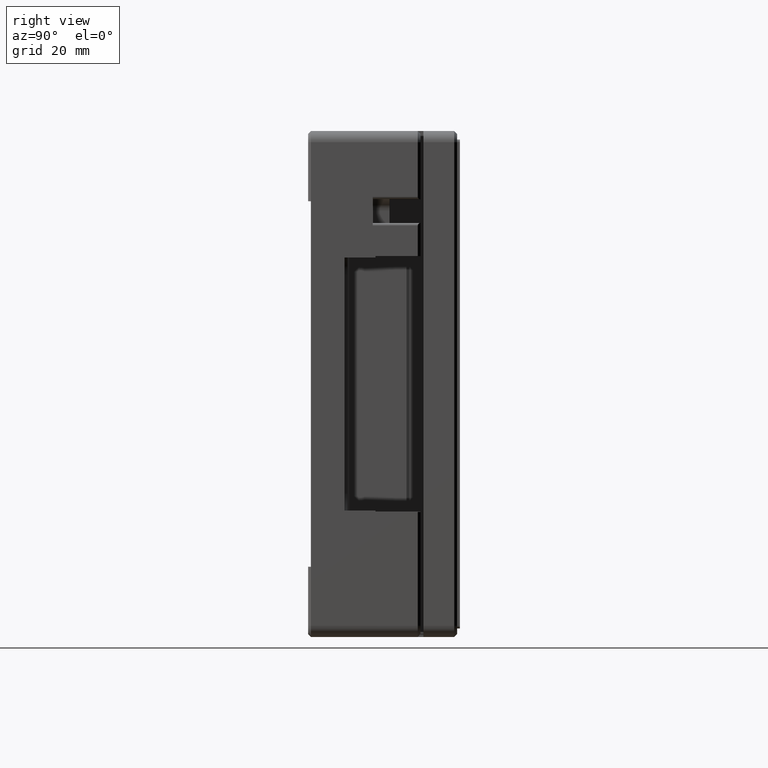
[diagram: clean part render]
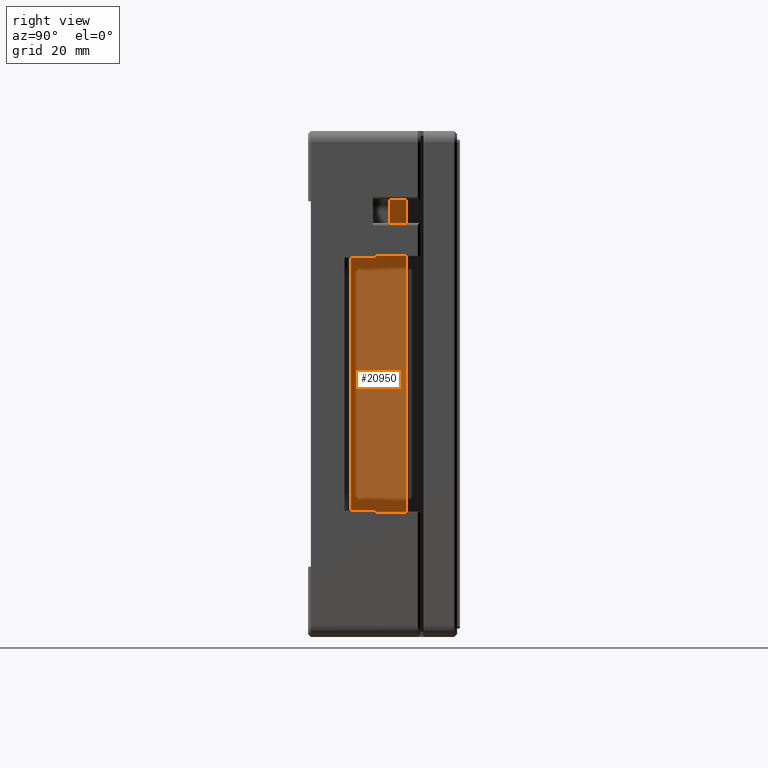
[diagram: same view with one face highlighted and labeled with its STEP entity id]
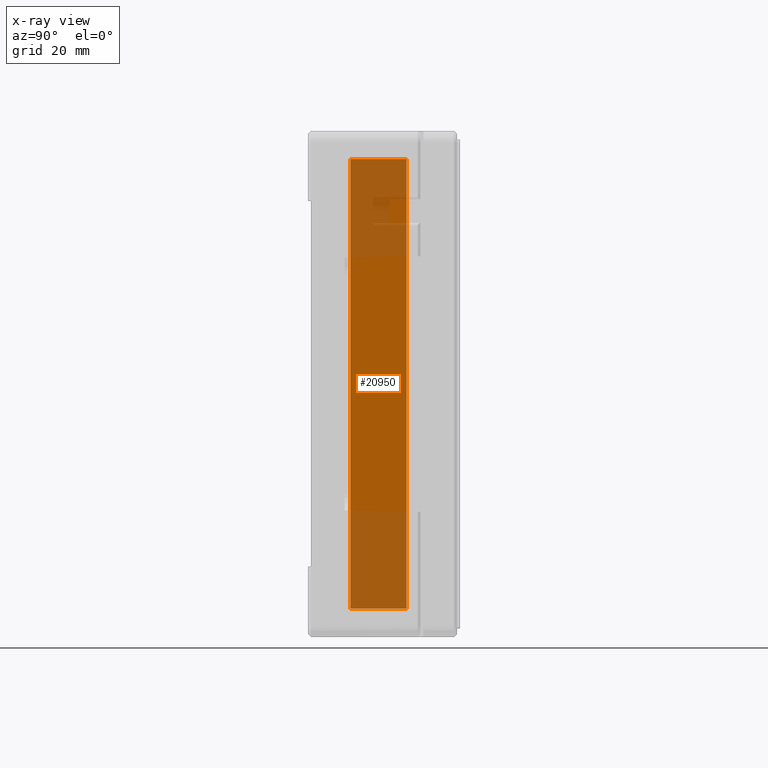
[diagram: x-ray of the same camera — body ghosted, the highlighted face saturated]
A machine part, right view. The second image highlights one B-rep face of the part: STEP entity #20950.
The next image is the same camera in x-ray: the body ghosted, the highlighted face saturated — about 42% of this face is hidden behind the body in this view.
In plain terms, the highlighted planar face has unit normal (1, 0, 0).
Its self-contained STEP definition (entity closure, byte-faithful):
#1202 = CARTESIAN_POINT ( 'NONE',  ( 7.050000000000000700, -12.50000000000000000, -39.99999999999995700 ) ) ;
#1499 = AXIS2_PLACEMENT_3D ( 'NONE', #1202, #35318, #16725 ) ;
#5408 = CARTESIAN_POINT ( 'NONE',  ( 7.050000000000000700, -7.500000000000000000, -39.99999999999995700 ) ) ;
#5901 = ORIENTED_EDGE ( 'NONE', *, *, #17691, .F. ) ;
#6386 = VERTEX_POINT ( 'NONE', #38178 ) ;
#7092 = VERTEX_POINT ( 'NONE', #23858 ) ;
#7365 = EDGE_CURVE ( 'NONE', #6386, #9621, #28474, .T. ) ;
#7394 = PLANE ( 'NONE',  #1499 ) ;
#9052 = CARTESIAN_POINT ( 'NONE',  ( 7.050000000000000700, -2.499999999999999600, -39.99999999999995700 ) ) ;
#9621 = VERTEX_POINT ( 'NONE', #9052 ) ;
#9778 = VECTOR ( 'NONE', #10739, 1000.000000000000000 ) ;
#10739 = DIRECTION ( 'NONE',  ( -0.0000000000000000000, 1.000000000000000000, 0.0000000000000000000 ) ) ;
#10743 = LINE ( 'NONE', #13693, #9778 ) ;
#12109 = CARTESIAN_POINT ( 'NONE',  ( 7.050000000000000700, -12.50000000000000000, -39.99999999999995700 ) ) ;
#12499 = ORIENTED_EDGE ( 'NONE', *, *, #7365, .F. ) ;
#12841 = VECTOR ( 'NONE', #36997, 1000.000000000000000 ) ;
#13693 = CARTESIAN_POINT ( 'NONE',  ( 7.050000000000000700, -7.500000000000000000, 40.00000000000004300 ) ) ;
#14168 = CARTESIAN_POINT ( 'NONE',  ( 7.050000000000000700, -2.499999999999999600, -39.99999999999995700 ) ) ;
#15240 = CARTESIAN_POINT ( 'NONE',  ( 7.050000000000000700, -12.50000000000000000, -39.99999999999995700 ) ) ;
#16725 = DIRECTION ( 'NONE',  ( 0.0000000000000000000, 0.0000000000000000000, -1.000000000000000000 ) ) ;
#17463 = VECTOR ( 'NONE', #30202, 1000.000000000000000 ) ;
#17691 = EDGE_CURVE ( 'NONE', #37433, #7092, #29322, .T. ) ;
#19806 = EDGE_CURVE ( 'NONE', #7092, #6386, #10743, .T. ) ;
#20475 = ORIENTED_EDGE ( 'NONE', *, *, #19806, .F. ) ;
#20950 = ADVANCED_FACE ( 'NONE', ( #28140 ), #7394, .T. ) ;
#21191 = VECTOR ( 'NONE', #35850, 1000.000000000000000 ) ;
#23858 = CARTESIAN_POINT ( 'NONE',  ( 7.050000000000000700, -12.50000000000000000, 40.00000000000004300 ) ) ;
#24444 = EDGE_LOOP ( 'NONE', ( #5901, #25751, #12499, #20475 ) ) ;
#25751 = ORIENTED_EDGE ( 'NONE', *, *, #32176, .T. ) ;
#26723 = LINE ( 'NONE', #5408, #17463 ) ;
#28140 = FACE_OUTER_BOUND ( 'NONE', #24444, .T. ) ;
#28474 = LINE ( 'NONE', #14168, #21191 ) ;
#29322 = LINE ( 'NONE', #12109, #12841 ) ;
#30202 = DIRECTION ( 'NONE',  ( -0.0000000000000000000, 1.000000000000000000, 0.0000000000000000000 ) ) ;
#32176 = EDGE_CURVE ( 'NONE', #37433, #9621, #26723, .T. ) ;
#35318 = DIRECTION ( 'NONE',  ( 1.000000000000000000, 0.0000000000000000000, 0.0000000000000000000 ) ) ;
#35850 = DIRECTION ( 'NONE',  ( -0.0000000000000000000, 0.0000000000000000000, -1.000000000000000000 ) ) ;
#36997 = DIRECTION ( 'NONE',  ( -0.0000000000000000000, 0.0000000000000000000, 1.000000000000000000 ) ) ;
#37433 = VERTEX_POINT ( 'NONE', #15240 ) ;
#38178 = CARTESIAN_POINT ( 'NONE',  ( 7.050000000000000700, -2.499999999999999600, 40.00000000000004300 ) ) ;